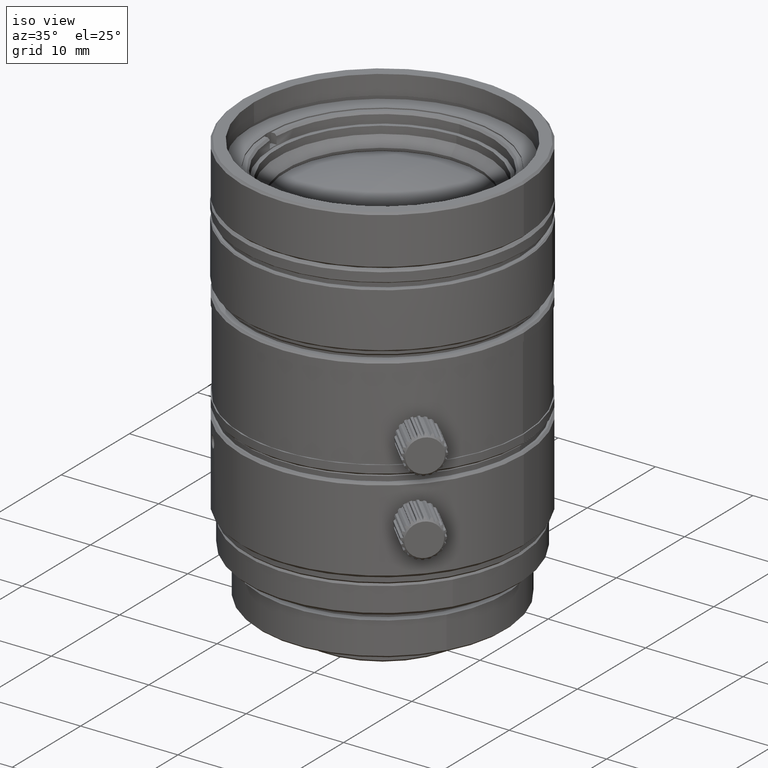
[diagram: clean part render]
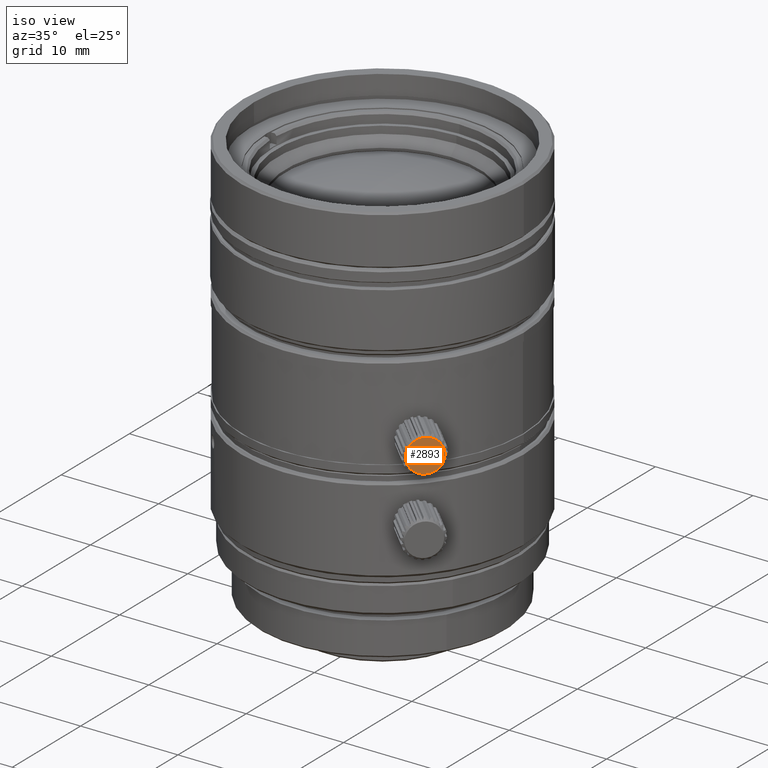
[diagram: same view with one face highlighted and labeled with its STEP entity id]
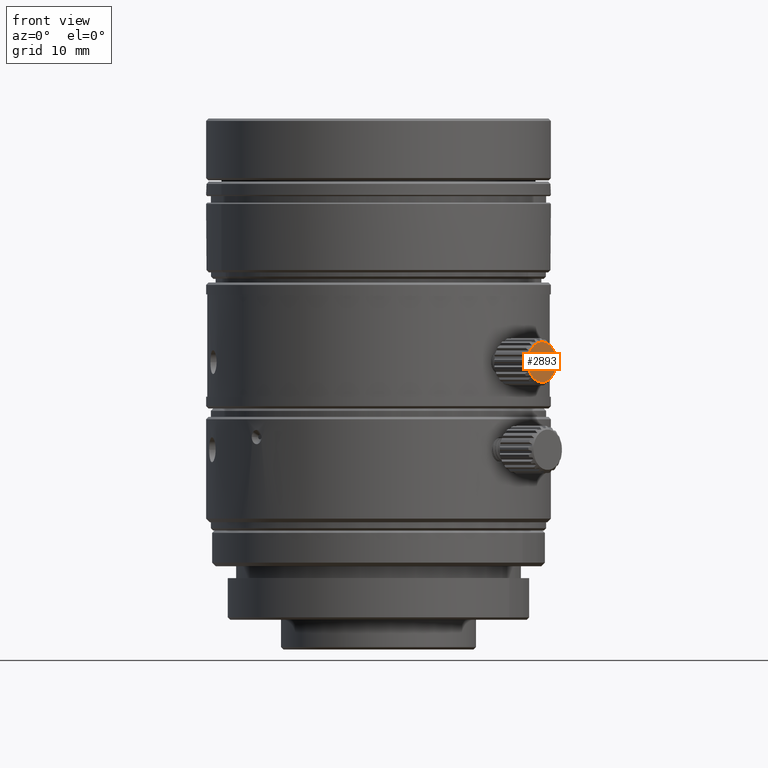
[diagram: same view with one face highlighted and labeled with its STEP entity id]
A machine part, iso view. The second image highlights one B-rep face of the part: STEP entity #2893.
A second angle (front view) of the same face is appended — the face is thin or edge-on in the first view.
In plain terms, the highlighted planar face has unit normal (-0.7071, 0.7071, 0).
Its self-contained STEP definition (entity closure, byte-faithful):
#1306 = FACE_OUTER_BOUND ( 'NONE', #30886, .T. ) ;
#2479 = VERTEX_POINT ( 'NONE', #22932 ) ;
#2893 = ADVANCED_FACE ( 'NONE', ( #1306 ), #34794, .F. ) ;
#4486 = EDGE_CURVE ( 'NONE', #11129, #2479, #15188, .T. ) ;
#4645 = DIRECTION ( 'NONE',  ( -0.5254631090513864899, -0.5254631090513874891, -0.6691614469260018794 ) ) ;
#5959 = CARTESIAN_POINT ( 'NONE',  ( 13.75235614316959953, -13.38915673692789987, 20.16419940371999786 ) ) ;
#9592 = CARTESIAN_POINT ( 'NONE',  ( 13.75235614316970079, -13.38915673692789987, 20.16419940371999786 ) ) ;
#9659 = AXIS2_PLACEMENT_3D ( 'NONE', #5959, #33743, #33566 ) ;
#10174 = CARTESIAN_POINT ( 'NONE',  ( 13.75235614316959953, -13.38915673692789987, 20.16419940371999786 ) ) ;
#11129 = VERTEX_POINT ( 'NONE', #28263 ) ;
#15188 = CIRCLE ( 'NONE', #19897, 1.700000000000000622 ) ;
#16501 = ORIENTED_EDGE ( 'NONE', *, *, #23068, .F. ) ;
#18162 = AXIS2_PLACEMENT_3D ( 'NONE', #9592, #21007, #23772 ) ;
#19897 = AXIS2_PLACEMENT_3D ( 'NONE', #10174, #35745, #4645 ) ;
#21007 = DIRECTION ( 'NONE',  ( -0.7071067811865480168, 0.7071067811865470176, 0.000000000000000000 ) ) ;
#22932 = CARTESIAN_POINT ( 'NONE',  ( 14.64564342869850222, -12.49586945139899541, 21.30177386367439496 ) ) ;
#23068 = EDGE_CURVE ( 'NONE', #2479, #11129, #31415, .T. ) ;
#23772 = DIRECTION ( 'NONE',  ( 0.000000000000000000, 0.000000000000000000, 1.000000000000000000 ) ) ;
#28263 = CARTESIAN_POINT ( 'NONE',  ( 12.85906885764079632, -14.28244402245670486, 19.02662494376560431 ) ) ;
#30886 = EDGE_LOOP ( 'NONE', ( #16501, #33421 ) ) ;
#31415 = CIRCLE ( 'NONE', #9659, 1.700000000000000622 ) ;
#33421 = ORIENTED_EDGE ( 'NONE', *, *, #4486, .F. ) ;
#33566 = DIRECTION ( 'NONE',  ( -0.5254631090513864899, -0.5254631090513874891, -0.6691614469260018794 ) ) ;
#33743 = DIRECTION ( 'NONE',  ( -0.7071067811865480168, 0.7071067811865470176, -1.536640864533089994E-16 ) ) ;
#34794 = PLANE ( 'NONE',  #18162 ) ;
#35745 = DIRECTION ( 'NONE',  ( -0.7071067811865480168, 0.7071067811865470176, -1.536640864533089994E-16 ) ) ;